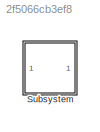
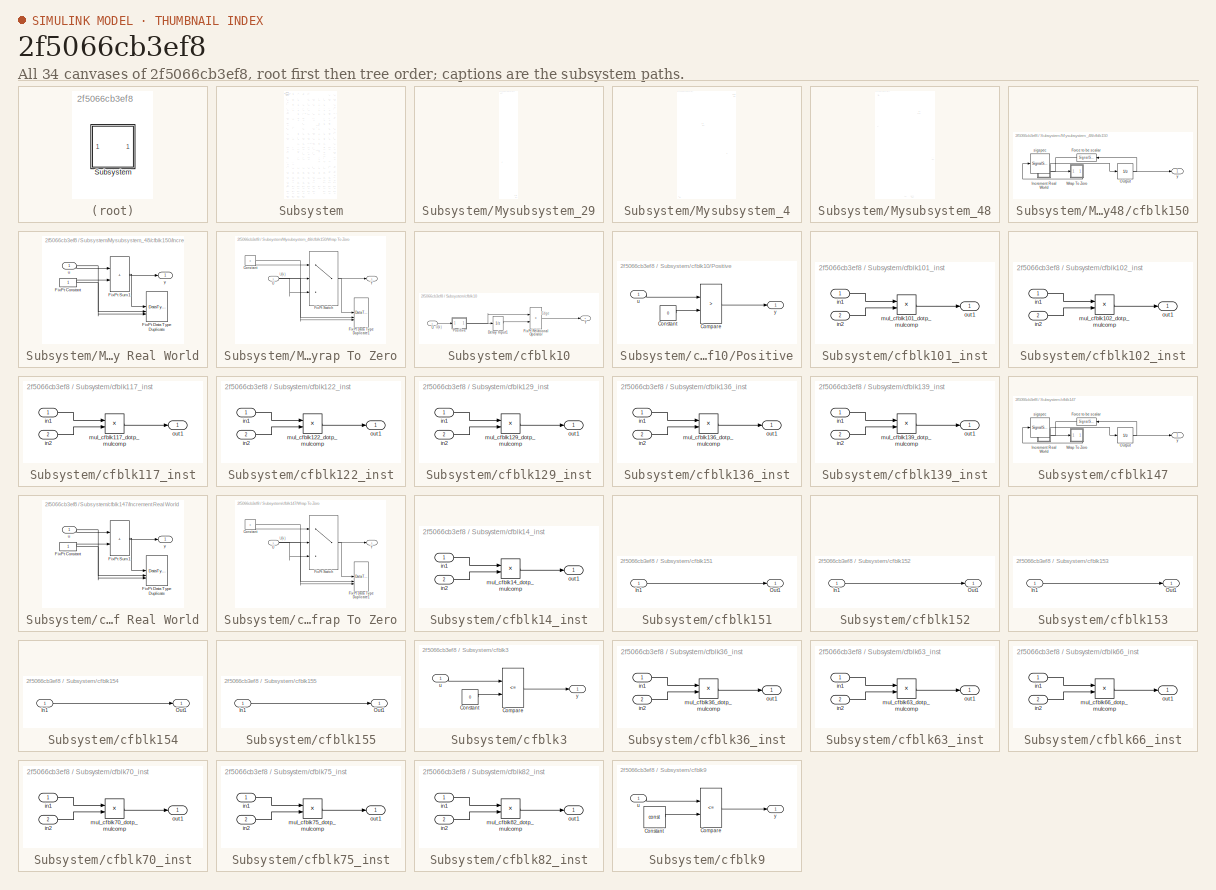
[diagram: thumbnail index - all 34 canvases of the model, root first then tree order]
MODEL slx_2f5066cb3ef8
KIND model
CONFIG AbsTol = auto
CONFIG EnableMultiTasking = off
CONFIG FixedStep = auto
CONFIG MaxStep = auto
CONFIG MinStep = auto
CONFIG RelTol = 1e-3
CONFIG SampleTimeConstraint = Unconstrained
CONFIG SolverName = VariableStepAuto
CONFIG StartTime = 0.0
CONFIG StopTime = 10.0
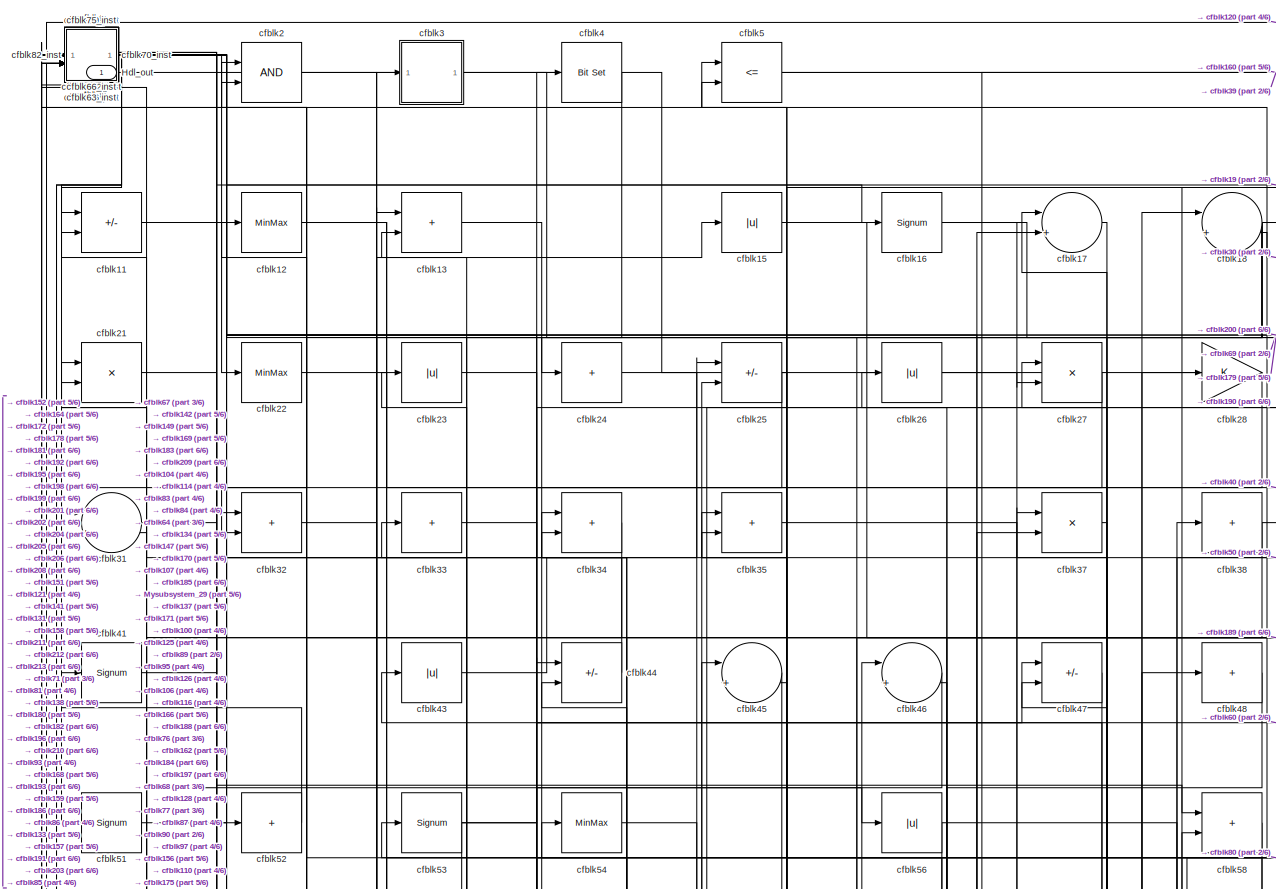
[diagram: Subsystem - part 1/6, full width, top band]
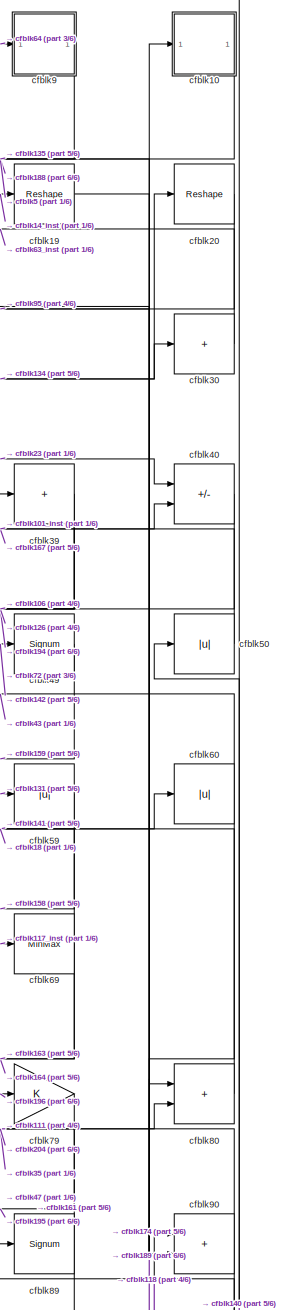
[diagram: Subsystem - part 2/6, top right region]
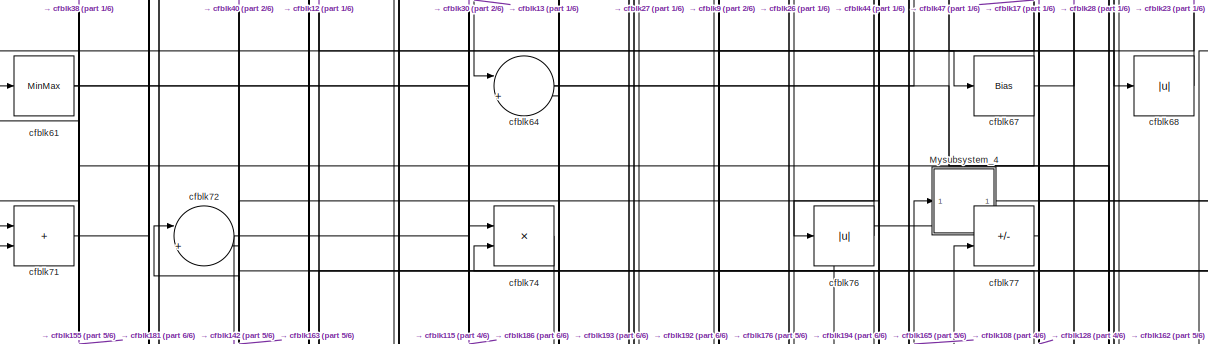
[diagram: Subsystem - part 3/6, full width, top band]
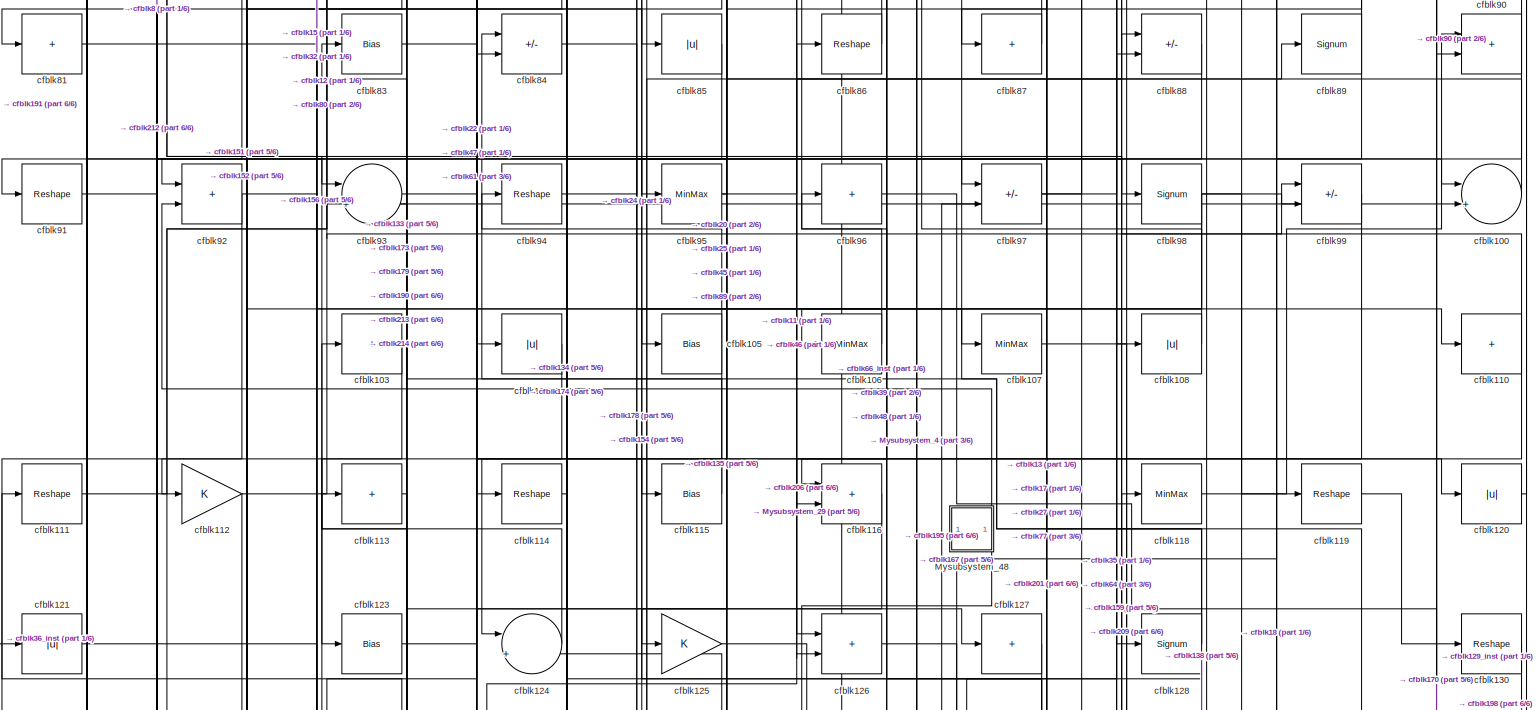
[diagram: Subsystem - part 4/6, full width, middle band]
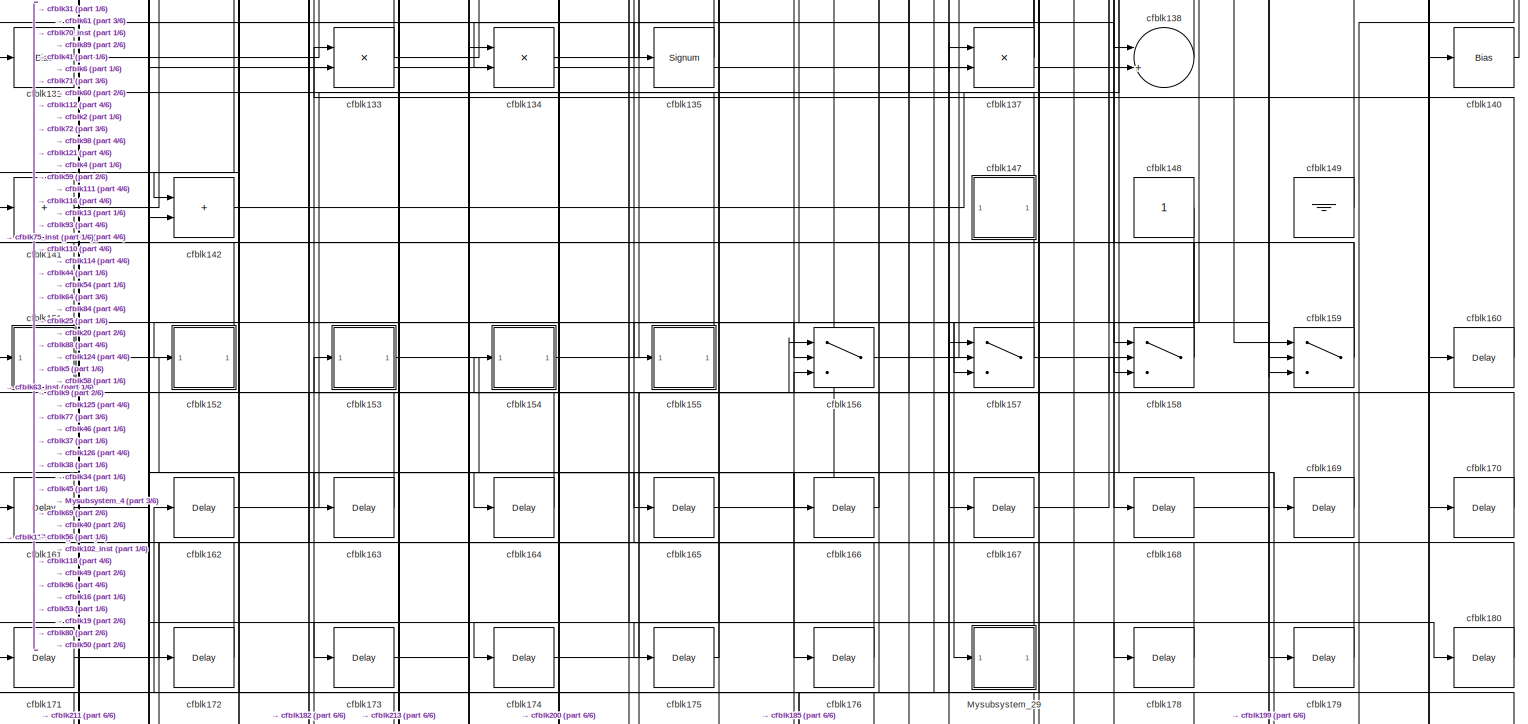
[diagram: Subsystem - part 5/6, full width, bottom band]
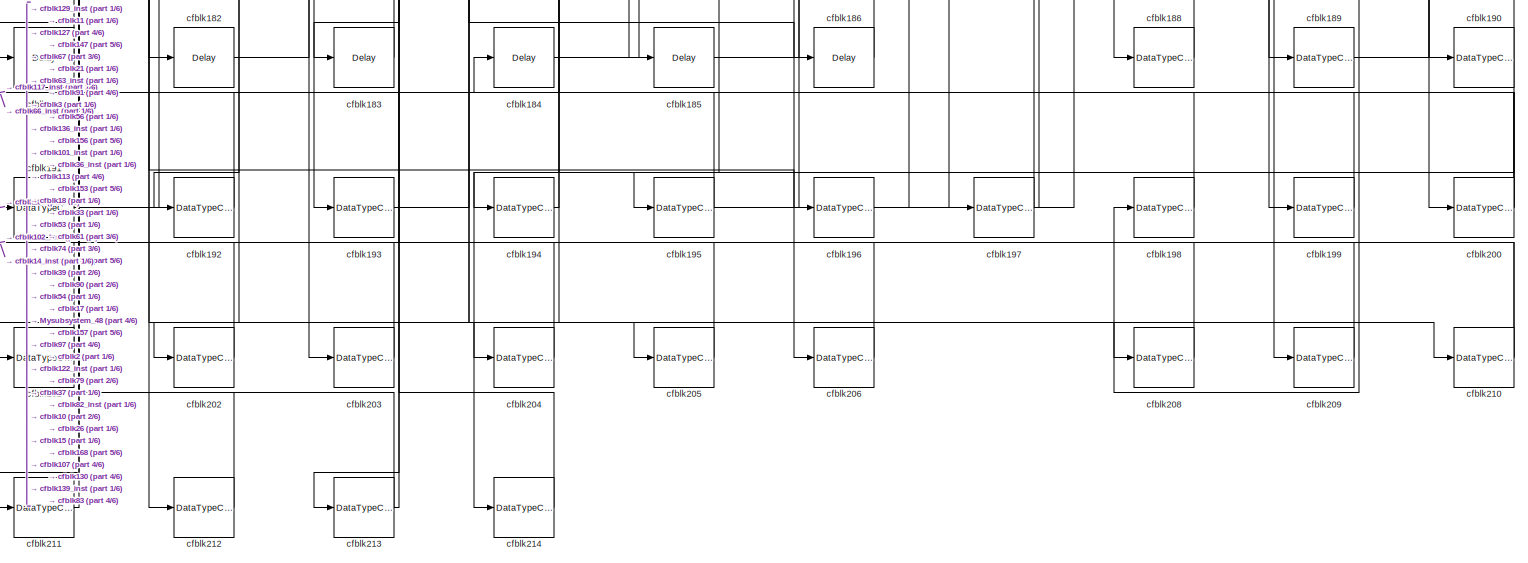
[diagram: Subsystem - part 6/6, full width, bottom band]
BLOCK [SubSystem] Subsystem
BLOCK [Outport] Subsystem/Hdl_out
  OutDataTypeStr = uint8
  SampleTime = 1
BLOCK [SubSystem] Subsystem/Mysubsystem_29
BLOCK [Inport] Subsystem/Mysubsystem_29/In1
  OutDataTypeStr = uint8
  PortDimensions = 1
  SampleTime = 1
BLOCK [Outport] Subsystem/Mysubsystem_29/Out1
  SampleTime = 1
BLOCK [Delay] Subsystem/Mysubsystem_29/cfblk177
  InputPortMap = u0
  SampleTime = 1
BLOCK [SubSystem] Subsystem/Mysubsystem_4
BLOCK [Inport] Subsystem/Mysubsystem_4/In2
  OutDataTypeStr = uint8
  PortDimensions = 1
  SampleTime = 1
BLOCK [Outport] Subsystem/Mysubsystem_4/Out1
  SampleTime = 1
BLOCK [Signum] Subsystem/Mysubsystem_4/cfblk29
BLOCK [Abs] Subsystem/Mysubsystem_4/cfblk65
  SaturateOnIntegerOverflow = off
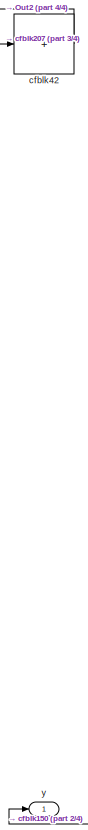
[diagram: Subsystem/Mysubsystem_48 - part 1/4, top left region]
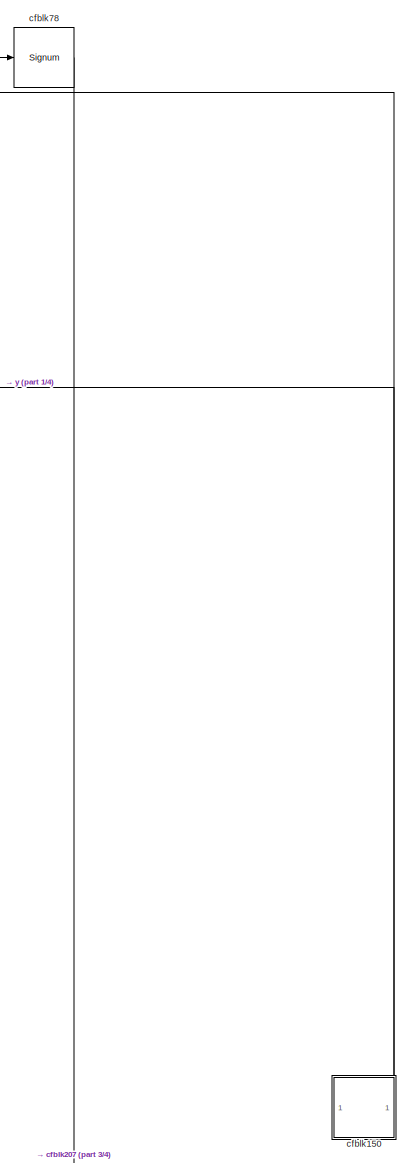
[diagram: Subsystem/Mysubsystem_48 - part 2/4, middle right region]
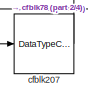
[diagram: Subsystem/Mysubsystem_48 - part 3/4, bottom center region]
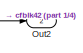
[diagram: Subsystem/Mysubsystem_48 - part 4/4, bottom center region]
BLOCK [SubSystem] Subsystem/Mysubsystem_48
BLOCK [Outport] Subsystem/Mysubsystem_48/Out2
  Port = 2
  SampleTime = 1
BLOCK [SubSystem] Subsystem/Mysubsystem_48/cfblk150
BLOCK [SignalSpecification] Subsystem/Mysubsystem_48/cfblk150/Force to be scalar
  Dimensions = 1
  DisableCoverage = on
BLOCK [SubSystem] Subsystem/Mysubsystem_48/cfblk150/Increment Real World
BLOCK [Constant] Subsystem/Mysubsystem_48/cfblk150/Increment Real World/FixPt Constant
  DisableCoverage = on
  OutDataTypeStr = Inherit: Inherit via back propagation
  SampleTime = -1
BLOCK [DataTypeDuplicate] Subsystem/Mysubsystem_48/cfblk150/Increment Real World/FixPt Data Type Duplicate
  DisableCoverage = on
  NumInputPorts = 3
BLOCK [Sum] Subsystem/Mysubsystem_48/cfblk150/Increment Real World/FixPt Sum1
  IconShape = rectangular
  InputSameDT = on
  LockScale = on
  OutDataTypeStr = Inherit: Inherit via back propagation
BLOCK [Inport] Subsystem/Mysubsystem_48/cfblk150/Increment Real World/u
  OutDataTypeStr = uint16
  SampleTime = 1
BLOCK [Outport] Subsystem/Mysubsystem_48/cfblk150/Increment Real World/y
  SampleTime = 1
BLOCK [UnitDelay] Subsystem/Mysubsystem_48/cfblk150/Output
  HasFrameUpgradeWarning = on
  InitialCondition = 0.0
  SampleTime = tsamp
BLOCK [SubSystem] Subsystem/Mysubsystem_48/cfblk150/Wrap To Zero
BLOCK [Constant] Subsystem/Mysubsystem_48/cfblk150/Wrap To Zero/Constant
  DisableCoverage = on
  OutDataTypeStr = Inherit: Inherit via back propagation
  SampleTime = -1
  Value = 0
BLOCK [DataTypeDuplicate] Subsystem/Mysubsystem_48/cfblk150/Wrap To Zero/FixPt Data Type Duplicate1
  DisableCoverage = on
  NumInputPorts = 3
BLOCK [Switch] Subsystem/Mysubsystem_48/cfblk150/Wrap To Zero/FixPt Switch
  Criteria = u2 > Threshold
  InputSameDT = off
  OutDataTypeStr = Inherit: Inherit via back propagation
  SaturateOnIntegerOverflow = off
  Threshold = Threshold
  ZeroCross = off
BLOCK [Inport] Subsystem/Mysubsystem_48/cfblk150/Wrap To Zero/U
  OutDataTypeStr = uint16
  SampleTime = 1
BLOCK [Outport] Subsystem/Mysubsystem_48/cfblk150/Wrap To Zero/Y
  SampleTime = 1
BLOCK [SignalSpecification] Subsystem/Mysubsystem_48/cfblk150/sigspec
  Dimensions = 1
  OutDataTypeStr = uint16
BLOCK [Outport] Subsystem/Mysubsystem_48/cfblk150/y
  SampleTime = 1
BLOCK [DataTypeConversion] Subsystem/Mysubsystem_48/cfblk207
  OutDataTypeStr = uint8
  RndMeth = Floor
  SaturateOnIntegerOverflow = off
BLOCK [Sum] Subsystem/Mysubsystem_48/cfblk42
  IconShape = rectangular
  Inputs = +
BLOCK [Signum] Subsystem/Mysubsystem_48/cfblk78
BLOCK [Outport] Subsystem/Mysubsystem_48/y
  SampleTime = 1
BLOCK [Constant] Subsystem/cfblk1
  OutDataTypeStr = uint8
  SampleTime = 1
  Value = 0
BLOCK [SubSystem] Subsystem/cfblk10
BLOCK [UnitDelay] Subsystem/cfblk10/Delay Input1
  Description = Store in Global RAM
  DisableCoverage = on
  HasFrameUpgradeWarning = on
  InitialCondition = vinit
  SampleTime = -1
BLOCK [RelationalOperator] Subsystem/cfblk10/FixPt Relational Operator
  InputSameDT = off
  Operator = >
  OutDataTypeStr = fixdt(0, 8)
  ZeroCross = off
BLOCK [SubSystem] Subsystem/cfblk10/Positive
BLOCK [RelationalOperator] Subsystem/cfblk10/Positive/Compare
  Operator = >
  OutDataTypeStr = boolean
  ZeroCross = off
BLOCK [Constant] Subsystem/cfblk10/Positive/Constant
  DisableCoverage = on
  OutDataTypeStr = Inherit: Inherit via back propagation
  PreserveConstantTs = on
  SampleTime = -1
  Value = 0
BLOCK [Inport] Subsystem/cfblk10/Positive/u
  OutDataTypeStr = uint8
  SampleTime = 1
BLOCK [Outport] Subsystem/cfblk10/Positive/y
  SampleTime = 1
BLOCK [Inport] Subsystem/cfblk10/U
  OutDataTypeStr = uint8
  SampleTime = 1
BLOCK [Outport] Subsystem/cfblk10/Y
  SampleTime = 1
BLOCK [Sum] Subsystem/cfblk100
  Inputs = |++
  OutDataTypeStr = uint8
BLOCK [SubSystem] Subsystem/cfblk101_inst
BLOCK [Inport] Subsystem/cfblk101_inst/in1
  OutDataTypeStr = uint8
  SampleTime = 1
BLOCK [Inport] Subsystem/cfblk101_inst/in2
  OutDataTypeStr = uint8
  Port = 2
  SampleTime = 1
BLOCK [Product] Subsystem/cfblk101_inst/mul_cfblk101_dotp_mulcomp
  Inputs = **
  OutDataTypeStr = uint8
  SampleTime = 1
BLOCK [Outport] Subsystem/cfblk101_inst/out1
  OutDataTypeStr = uint8
  SampleTime = 1
BLOCK [SubSystem] Subsystem/cfblk102_inst
BLOCK [Inport] Subsystem/cfblk102_inst/in1
  OutDataTypeStr = uint8
  SampleTime = 1
BLOCK [Inport] Subsystem/cfblk102_inst/in2
  OutDataTypeStr = uint8
  Port = 2
  SampleTime = 1
BLOCK [Product] Subsystem/cfblk102_inst/mul_cfblk102_dotp_mulcomp
  Inputs = **
  OutDataTypeStr = uint8
  SampleTime = 1
BLOCK [Outport] Subsystem/cfblk102_inst/out1
  OutDataTypeStr = uint8
  SampleTime = 1
BLOCK [Sum] Subsystem/cfblk103
  IconShape = rectangular
  Inputs = +
  OutDataTypeStr = uint8
BLOCK [Abs] Subsystem/cfblk104
  OutDataTypeStr = uint8
  SaturateOnIntegerOverflow = off
BLOCK [Bias] Subsystem/cfblk105
  Bias = 0.0
  SaturateOnIntegerOverflow = off
BLOCK [MinMax] Subsystem/cfblk106
  OutDataTypeStr = uint8
BLOCK [MinMax] Subsystem/cfblk107
  OutDataTypeStr = uint8
BLOCK [Abs] Subsystem/cfblk108
  OutDataTypeStr = uint8
  SaturateOnIntegerOverflow = off
BLOCK [Sum] Subsystem/cfblk11
  IconShape = rectangular
  Inputs = +-
  OutDataTypeStr = uint8
BLOCK [Sum] Subsystem/cfblk110
  IconShape = rectangular
  Inputs = +
  OutDataTypeStr = uint8
BLOCK [Reshape] Subsystem/cfblk111
BLOCK [Gain] Subsystem/cfblk112
  OutDataTypeStr = uint8
BLOCK [Sum] Subsystem/cfblk113
  IconShape = rectangular
  Inputs = +
  OutDataTypeStr = uint8
BLOCK [Reshape] Subsystem/cfblk114
BLOCK [Bias] Subsystem/cfblk115
  Bias = 0.0
  SaturateOnIntegerOverflow = off
BLOCK [Sum] Subsystem/cfblk116
  IconShape = rectangular
  OutDataTypeStr = uint8
BLOCK [SubSystem] Subsystem/cfblk117_inst
BLOCK [Inport] Subsystem/cfblk117_inst/in1
  OutDataTypeStr = uint8
  SampleTime = 1
BLOCK [Inport] Subsystem/cfblk117_inst/in2
  OutDataTypeStr = uint8
  Port = 2
  SampleTime = 1
BLOCK [Product] Subsystem/cfblk117_inst/mul_cfblk117_dotp_mulcomp
  Inputs = **
  OutDataTypeStr = uint8
  SampleTime = 1
BLOCK [Outport] Subsystem/cfblk117_inst/out1
  OutDataTypeStr = uint8
  SampleTime = 1
BLOCK [MinMax] Subsystem/cfblk118
  OutDataTypeStr = uint8
BLOCK [Reshape] Subsystem/cfblk119
BLOCK [MinMax] Subsystem/cfblk12
  OutDataTypeStr = uint8
BLOCK [Abs] Subsystem/cfblk120
  OutDataTypeStr = uint8
  SaturateOnIntegerOverflow = off
BLOCK [Abs] Subsystem/cfblk121
  OutDataTypeStr = uint8
  SaturateOnIntegerOverflow = off
BLOCK [SubSystem] Subsystem/cfblk122_inst
BLOCK [Inport] Subsystem/cfblk122_inst/in1
  OutDataTypeStr = uint8
  SampleTime = 1
BLOCK [Inport] Subsystem/cfblk122_inst/in2
  OutDataTypeStr = uint8
  Port = 2
  SampleTime = 1
BLOCK [Product] Subsystem/cfblk122_inst/mul_cfblk122_dotp_mulcomp
  Inputs = **
  OutDataTypeStr = uint8
  SampleTime = 1
BLOCK [Outport] Subsystem/cfblk122_inst/out1
  OutDataTypeStr = uint8
  SampleTime = 1
BLOCK [Bias] Subsystem/cfblk123
  Bias = 0.0
  SaturateOnIntegerOverflow = off
BLOCK [Sum] Subsystem/cfblk124
  Inputs = |++
  OutDataTypeStr = uint8
BLOCK [Gain] Subsystem/cfblk125
  OutDataTypeStr = uint8
BLOCK [Sum] Subsystem/cfblk126
  IconShape = rectangular
  OutDataTypeStr = uint8
BLOCK [Sum] Subsystem/cfblk127
  IconShape = rectangular
  Inputs = +
  OutDataTypeStr = uint8
BLOCK [Signum] Subsystem/cfblk128
BLOCK [SubSystem] Subsystem/cfblk129_inst
BLOCK [Inport] Subsystem/cfblk129_inst/in1
  OutDataTypeStr = uint8
  SampleTime = 1
BLOCK [Inport] Subsystem/cfblk129_inst/in2
  OutDataTypeStr = uint8
  Port = 2
  SampleTime = 1
BLOCK [Product] Subsystem/cfblk129_inst/mul_cfblk129_dotp_mulcomp
  Inputs = **
  OutDataTypeStr = uint8
  SampleTime = 1
BLOCK [Outport] Subsystem/cfblk129_inst/out1
  OutDataTypeStr = uint8
  SampleTime = 1
BLOCK [Sum] Subsystem/cfblk13
  IconShape = rectangular
  OutDataTypeStr = uint8
BLOCK [Reshape] Subsystem/cfblk130
BLOCK [Bias] Subsystem/cfblk131
  Bias = 0.0
  SaturateOnIntegerOverflow = off
BLOCK [Product] Subsystem/cfblk133
  Inputs = */
  OutDataTypeStr = uint8
  RndMeth = Zero
  SaturateOnIntegerOverflow = on
BLOCK [Product] Subsystem/cfblk134
  Inputs = */
  OutDataTypeStr = uint8
  RndMeth = Zero
  SaturateOnIntegerOverflow = on
BLOCK [Signum] Subsystem/cfblk135
BLOCK [SubSystem] Subsystem/cfblk136_inst
BLOCK [Inport] Subsystem/cfblk136_inst/in1
  OutDataTypeStr = uint8
  SampleTime = 1
BLOCK [Inport] Subsystem/cfblk136_inst/in2
  OutDataTypeStr = uint8
  Port = 2
  SampleTime = 1
BLOCK [Product] Subsystem/cfblk136_inst/mul_cfblk136_dotp_mulcomp
  Inputs = **
  OutDataTypeStr = uint8
  SampleTime = 1
BLOCK [Outport] Subsystem/cfblk136_inst/out1
  OutDataTypeStr = uint8
  SampleTime = 1
BLOCK [Product] Subsystem/cfblk137
  Inputs = */
  OutDataTypeStr = uint8
  RndMeth = Zero
  SaturateOnIntegerOverflow = on
BLOCK [Sum] Subsystem/cfblk138
  Inputs = |++
  OutDataTypeStr = uint8
BLOCK [SubSystem] Subsystem/cfblk139_inst
BLOCK [Inport] Subsystem/cfblk139_inst/in1
  OutDataTypeStr = uint8
  SampleTime = 1
BLOCK [Inport] Subsystem/cfblk139_inst/in2
  OutDataTypeStr = uint8
  Port = 2
  SampleTime = 1
BLOCK [Product] Subsystem/cfblk139_inst/mul_cfblk139_dotp_mulcomp
  Inputs = **
  OutDataTypeStr = uint8
  SampleTime = 1
BLOCK [Outport] Subsystem/cfblk139_inst/out1
  OutDataTypeStr = uint8
  SampleTime = 1
BLOCK [Bias] Subsystem/cfblk140
  Bias = 0.0
  SaturateOnIntegerOverflow = off
BLOCK [Sum] Subsystem/cfblk141
  IconShape = rectangular
  Inputs = +
  OutDataTypeStr = uint8
BLOCK [Sum] Subsystem/cfblk142
  IconShape = rectangular
  OutDataTypeStr = uint8
BLOCK [SubSystem] Subsystem/cfblk147
BLOCK [SignalSpecification] Subsystem/cfblk147/Force to be scalar
  Dimensions = 1
  DisableCoverage = on
BLOCK [SubSystem] Subsystem/cfblk147/Increment Real World
BLOCK [Constant] Subsystem/cfblk147/Increment Real World/FixPt Constant
  DisableCoverage = on
  OutDataTypeStr = Inherit: Inherit via back propagation
  SampleTime = -1
BLOCK [DataTypeDuplicate] Subsystem/cfblk147/Increment Real World/FixPt Data Type Duplicate
  DisableCoverage = on
  NumInputPorts = 3
BLOCK [Sum] Subsystem/cfblk147/Increment Real World/FixPt Sum1
  IconShape = rectangular
  InputSameDT = on
  LockScale = on
  OutDataTypeStr = Inherit: Inherit via back propagation
BLOCK [Inport] Subsystem/cfblk147/Increment Real World/u
  OutDataTypeStr = uint16
  SampleTime = 1
BLOCK [Outport] Subsystem/cfblk147/Increment Real World/y
  SampleTime = 1
BLOCK [UnitDelay] Subsystem/cfblk147/Output
  HasFrameUpgradeWarning = on
  InitialCondition = 0.0
  SampleTime = tsamp
BLOCK [SubSystem] Subsystem/cfblk147/Wrap To Zero
BLOCK [Constant] Subsystem/cfblk147/Wrap To Zero/Constant
  DisableCoverage = on
  OutDataTypeStr = Inherit: Inherit via back propagation
  SampleTime = -1
  Value = 0
BLOCK [DataTypeDuplicate] Subsystem/cfblk147/Wrap To Zero/FixPt Data Type Duplicate1
  DisableCoverage = on
  NumInputPorts = 3
BLOCK [Switch] Subsystem/cfblk147/Wrap To Zero/FixPt Switch
  Criteria = u2 > Threshold
  InputSameDT = off
  OutDataTypeStr = Inherit: Inherit via back propagation
  SaturateOnIntegerOverflow = off
  Threshold = Threshold
  ZeroCross = off
BLOCK [Inport] Subsystem/cfblk147/Wrap To Zero/U
  OutDataTypeStr = uint16
  SampleTime = 1
BLOCK [Outport] Subsystem/cfblk147/Wrap To Zero/Y
  SampleTime = 1
BLOCK [SignalSpecification] Subsystem/cfblk147/sigspec
  Dimensions = 1
  OutDataTypeStr = uint16
BLOCK [Outport] Subsystem/cfblk147/y
  SampleTime = 1
BLOCK [Constant] Subsystem/cfblk148
  OutDataTypeStr = uint8
  SampleTime = -1
BLOCK [Ground] Subsystem/cfblk149
BLOCK [SubSystem] Subsystem/cfblk14_inst
BLOCK [Inport] Subsystem/cfblk14_inst/in1
  OutDataTypeStr = uint8
  SampleTime = 1
BLOCK [Inport] Subsystem/cfblk14_inst/in2
  OutDataTypeStr = uint8
  Port = 2
  SampleTime = 1
BLOCK [Product] Subsystem/cfblk14_inst/mul_cfblk14_dotp_mulcomp
  Inputs = **
  OutDataTypeStr = uint8
  SampleTime = 1
BLOCK [Outport] Subsystem/cfblk14_inst/out1
  OutDataTypeStr = uint8
  SampleTime = 1
BLOCK [Abs] Subsystem/cfblk15
  OutDataTypeStr = uint8
  SaturateOnIntegerOverflow = off
BLOCK [SubSystem] Subsystem/cfblk151
BLOCK [Inport] Subsystem/cfblk151/In1
  OutDataTypeStr = uint8
  PortDimensions = 1
  SampleTime = 1
BLOCK [Outport] Subsystem/cfblk151/Out1
  SampleTime = 1
BLOCK [SubSystem] Subsystem/cfblk152
BLOCK [Inport] Subsystem/cfblk152/In1
  OutDataTypeStr = uint8
  PortDimensions = 1
  SampleTime = 1
BLOCK [Outport] Subsystem/cfblk152/Out1
  SampleTime = 1
BLOCK [SubSystem] Subsystem/cfblk153
BLOCK [Inport] Subsystem/cfblk153/In1
  OutDataTypeStr = uint8
  PortDimensions = 1
  SampleTime = 1
BLOCK [Outport] Subsystem/cfblk153/Out1
  SampleTime = 1
BLOCK [SubSystem] Subsystem/cfblk154
BLOCK [Inport] Subsystem/cfblk154/In1
  OutDataTypeStr = uint8
  PortDimensions = 1
  SampleTime = 1
BLOCK [Outport] Subsystem/cfblk154/Out1
  SampleTime = 1
BLOCK [SubSystem] Subsystem/cfblk155
BLOCK [Inport] Subsystem/cfblk155/In1
  OutDataTypeStr = uint8
  PortDimensions = 1
  SampleTime = 1
BLOCK [Outport] Subsystem/cfblk155/Out1
  SampleTime = 1
BLOCK [Switch] Subsystem/cfblk156
  InputSameDT = off
  OutDataTypeStr = uint8
  SaturateOnIntegerOverflow = off
BLOCK [Switch] Subsystem/cfblk157
  InputSameDT = off
  OutDataTypeStr = uint8
  SaturateOnIntegerOverflow = off
BLOCK [Switch] Subsystem/cfblk158
  InputSameDT = off
  OutDataTypeStr = uint8
  SaturateOnIntegerOverflow = off
BLOCK [Switch] Subsystem/cfblk159
  InputSameDT = off
  OutDataTypeStr = uint8
  SaturateOnIntegerOverflow = off
BLOCK [Signum] Subsystem/cfblk16
BLOCK [Delay] Subsystem/cfblk160
  InputPortMap = u0
  SampleTime = 1
BLOCK [Delay] Subsystem/cfblk161
  InputPortMap = u0
  SampleTime = 1
BLOCK [Delay] Subsystem/cfblk162
  InputPortMap = u0
  SampleTime = 1
BLOCK [Delay] Subsystem/cfblk163
  InputPortMap = u0
  SampleTime = 1
BLOCK [Delay] Subsystem/cfblk164
  InputPortMap = u0
  SampleTime = 1
BLOCK [Delay] Subsystem/cfblk165
  InputPortMap = u0
  SampleTime = 1
BLOCK [Delay] Subsystem/cfblk166
  InputPortMap = u0
  SampleTime = 1
BLOCK [Delay] Subsystem/cfblk167
  InputPortMap = u0
  SampleTime = 1
BLOCK [Delay] Subsystem/cfblk168
  InputPortMap = u0
  SampleTime = 1
BLOCK [Delay] Subsystem/cfblk169
  InputPortMap = u0
  SampleTime = 1
BLOCK [Sum] Subsystem/cfblk17
  Inputs = |++
  OutDataTypeStr = uint8
BLOCK [Delay] Subsystem/cfblk170
  InputPortMap = u0
  SampleTime = 1
BLOCK [Delay] Subsystem/cfblk171
  InputPortMap = u0
  SampleTime = 1
BLOCK [Delay] Subsystem/cfblk172
  InputPortMap = u0
  SampleTime = 1
BLOCK [Delay] Subsystem/cfblk173
  InputPortMap = u0
  SampleTime = 1
BLOCK [Delay] Subsystem/cfblk174
  InputPortMap = u0
  SampleTime = 1
BLOCK [Delay] Subsystem/cfblk175
  InputPortMap = u0
  SampleTime = 1
BLOCK [Delay] Subsystem/cfblk176
  InputPortMap = u0
  SampleTime = 1
BLOCK [Delay] Subsystem/cfblk178
  InputPortMap = u0
  SampleTime = 1
BLOCK [Delay] Subsystem/cfblk179
  InputPortMap = u0
  SampleTime = 1
BLOCK [Sum] Subsystem/cfblk18
  Inputs = |++
  OutDataTypeStr = uint8
BLOCK [Delay] Subsystem/cfblk180
  InputPortMap = u0
  SampleTime = 1
BLOCK [Delay] Subsystem/cfblk181
  InputPortMap = u0
  SampleTime = 1
BLOCK [Delay] Subsystem/cfblk182
  InputPortMap = u0
  SampleTime = 1
BLOCK [Delay] Subsystem/cfblk183
  InputPortMap = u0
  SampleTime = 1
BLOCK [Delay] Subsystem/cfblk184
  InputPortMap = u0
  SampleTime = 1
BLOCK [Delay] Subsystem/cfblk185
  InputPortMap = u0
  SampleTime = 1
BLOCK [Delay] Subsystem/cfblk186
  InputPortMap = u0
  SampleTime = 1
BLOCK [DataTypeConversion] Subsystem/cfblk188
  OutDataTypeStr = uint8
  RndMeth = Floor
  SaturateOnIntegerOverflow = off
BLOCK [DataTypeConversion] Subsystem/cfblk189
  OutDataTypeStr = uint8
  RndMeth = Floor
  SaturateOnIntegerOverflow = off
BLOCK [Reshape] Subsystem/cfblk19
BLOCK [DataTypeConversion] Subsystem/cfblk190
  OutDataTypeStr = uint8
  RndMeth = Floor
  SaturateOnIntegerOverflow = off
BLOCK [DataTypeConversion] Subsystem/cfblk191
  OutDataTypeStr = uint8
  RndMeth = Floor
  SaturateOnIntegerOverflow = off
BLOCK [DataTypeConversion] Subsystem/cfblk192
  OutDataTypeStr = uint8
  RndMeth = Floor
  SaturateOnIntegerOverflow = off
BLOCK [DataTypeConversion] Subsystem/cfblk193
  OutDataTypeStr = uint8
  RndMeth = Floor
  SaturateOnIntegerOverflow = off
BLOCK [DataTypeConversion] Subsystem/cfblk194
  OutDataTypeStr = uint8
  RndMeth = Floor
  SaturateOnIntegerOverflow = off
BLOCK [DataTypeConversion] Subsystem/cfblk195
  OutDataTypeStr = uint8
  RndMeth = Floor
  SaturateOnIntegerOverflow = off
BLOCK [DataTypeConversion] Subsystem/cfblk196
  OutDataTypeStr = uint8
  RndMeth = Floor
  SaturateOnIntegerOverflow = off
BLOCK [DataTypeConversion] Subsystem/cfblk197
  OutDataTypeStr = uint8
  RndMeth = Floor
  SaturateOnIntegerOverflow = off
BLOCK [DataTypeConversion] Subsystem/cfblk198
  OutDataTypeStr = uint8
  RndMeth = Floor
  SaturateOnIntegerOverflow = off
BLOCK [DataTypeConversion] Subsystem/cfblk199
  OutDataTypeStr = uint8
  RndMeth = Floor
  SaturateOnIntegerOverflow = off
BLOCK [Logic] Subsystem/cfblk2
  AllPortsSameDT = off
  OutDataTypeStr = boolean
BLOCK [Reshape] Subsystem/cfblk20
BLOCK [DataTypeConversion] Subsystem/cfblk200
  OutDataTypeStr = uint8
  RndMeth = Floor
  SaturateOnIntegerOverflow = off
BLOCK [DataTypeConversion] Subsystem/cfblk201
  OutDataTypeStr = uint8
  RndMeth = Floor
  SaturateOnIntegerOverflow = off
BLOCK [DataTypeConversion] Subsystem/cfblk202
  OutDataTypeStr = uint8
  RndMeth = Floor
  SaturateOnIntegerOverflow = off
BLOCK [DataTypeConversion] Subsystem/cfblk203
  OutDataTypeStr = uint8
  RndMeth = Floor
  SaturateOnIntegerOverflow = off
BLOCK [DataTypeConversion] Subsystem/cfblk204
  OutDataTypeStr = uint8
  RndMeth = Floor
  SaturateOnIntegerOverflow = off
BLOCK [DataTypeConversion] Subsystem/cfblk205
  OutDataTypeStr = uint8
  RndMeth = Floor
  SaturateOnIntegerOverflow = off
BLOCK [DataTypeConversion] Subsystem/cfblk206
  OutDataTypeStr = uint8
  RndMeth = Floor
  SaturateOnIntegerOverflow = off
BLOCK [DataTypeConversion] Subsystem/cfblk208
  OutDataTypeStr = uint8
  RndMeth = Floor
  SaturateOnIntegerOverflow = off
BLOCK [DataTypeConversion] Subsystem/cfblk209
  OutDataTypeStr = uint8
  RndMeth = Floor
  SaturateOnIntegerOverflow = off
BLOCK [Product] Subsystem/cfblk21
  Inputs = */
  OutDataTypeStr = uint8
  RndMeth = Zero
  SaturateOnIntegerOverflow = on
BLOCK [DataTypeConversion] Subsystem/cfblk210
  OutDataTypeStr = uint8
  RndMeth = Floor
  SaturateOnIntegerOverflow = off
BLOCK [DataTypeConversion] Subsystem/cfblk211
  OutDataTypeStr = uint8
  RndMeth = Floor
  SaturateOnIntegerOverflow = off
BLOCK [DataTypeConversion] Subsystem/cfblk212
  OutDataTypeStr = uint8
  RndMeth = Floor
  SaturateOnIntegerOverflow = off
BLOCK [DataTypeConversion] Subsystem/cfblk213
  OutDataTypeStr = uint8
  RndMeth = Floor
  SaturateOnIntegerOverflow = off
BLOCK [DataTypeConversion] Subsystem/cfblk214
  OutDataTypeStr = uint8
  RndMeth = Floor
  SaturateOnIntegerOverflow = off
BLOCK [MinMax] Subsystem/cfblk22
  OutDataTypeStr = uint8
BLOCK [Abs] Subsystem/cfblk23
  OutDataTypeStr = uint8
  SaturateOnIntegerOverflow = off
BLOCK [Sum] Subsystem/cfblk24
  IconShape = rectangular
  Inputs = +
  OutDataTypeStr = uint8
BLOCK [Sum] Subsystem/cfblk25
  IconShape = rectangular
  Inputs = +-
  OutDataTypeStr = uint8
BLOCK [Abs] Subsystem/cfblk26
  OutDataTypeStr = uint8
  SaturateOnIntegerOverflow = off
BLOCK [Product] Subsystem/cfblk27
  Inputs = */
  OutDataTypeStr = uint8
  RndMeth = Zero
  SaturateOnIntegerOverflow = on
BLOCK [Gain] Subsystem/cfblk28
  OutDataTypeStr = uint8
BLOCK [SubSystem] Subsystem/cfblk3
BLOCK [RelationalOperator] Subsystem/cfblk3/Compare
  Operator = <=
  OutDataTypeStr = fixdt(0, 8)
BLOCK [Constant] Subsystem/cfblk3/Constant
  DisableCoverage = on
  OutDataTypeStr = Inherit: Inherit via back propagation
  PreserveConstantTs = on
  SampleTime = -1
  Value = 0
BLOCK [Inport] Subsystem/cfblk3/u
  OutDataTypeStr = uint8
  SampleTime = 1
BLOCK [Outport] Subsystem/cfblk3/y
  SampleTime = 1
BLOCK [Sum] Subsystem/cfblk30
  IconShape = rectangular
  Inputs = +
  OutDataTypeStr = uint8
BLOCK [Sum] Subsystem/cfblk31
  Inputs = |++
  OutDataTypeStr = uint8
BLOCK [Sum] Subsystem/cfblk32
  IconShape = rectangular
  OutDataTypeStr = uint8
BLOCK [Sum] Subsystem/cfblk33
  IconShape = rectangular
  Inputs = +
  OutDataTypeStr = uint8
BLOCK [Sum] Subsystem/cfblk34
  IconShape = rectangular
  OutDataTypeStr = uint8
BLOCK [Sum] Subsystem/cfblk35
  IconShape = rectangular
  OutDataTypeStr = uint8
BLOCK [SubSystem] Subsystem/cfblk36_inst
BLOCK [Inport] Subsystem/cfblk36_inst/in1
  OutDataTypeStr = uint8
  SampleTime = 1
BLOCK [Inport] Subsystem/cfblk36_inst/in2
  OutDataTypeStr = uint8
  Port = 2
  SampleTime = 1
BLOCK [Product] Subsystem/cfblk36_inst/mul_cfblk36_dotp_mulcomp
  Inputs = **
  OutDataTypeStr = uint8
  SampleTime = 1
BLOCK [Outport] Subsystem/cfblk36_inst/out1
  OutDataTypeStr = uint8
  SampleTime = 1
BLOCK [Product] Subsystem/cfblk37
  Inputs = */
  OutDataTypeStr = uint8
  RndMeth = Zero
  SaturateOnIntegerOverflow = on
BLOCK [Sum] Subsystem/cfblk38
  IconShape = rectangular
  Inputs = +
  OutDataTypeStr = uint8
BLOCK [Sum] Subsystem/cfblk39
  IconShape = rectangular
  Inputs = +
  OutDataTypeStr = uint8
BLOCK [Reference] Subsystem/cfblk4  REF=simulink/Logic and Bit
Operations/Bit Set
  LibrarySourceBlock = hdlsllib/Logic and Bit\nOperations/Bit Set
  SourceBlock = simulink/Logic and Bit\nOperations/Bit Set
  SourceType = Bit Set
BLOCK [Sum] Subsystem/cfblk40
  IconShape = rectangular
  Inputs = +-
  OutDataTypeStr = uint8
BLOCK [Signum] Subsystem/cfblk41
BLOCK [Abs] Subsystem/cfblk43
  OutDataTypeStr = uint8
  SaturateOnIntegerOverflow = off
BLOCK [Sum] Subsystem/cfblk44
  IconShape = rectangular
  Inputs = +-
  OutDataTypeStr = uint8
BLOCK [Sum] Subsystem/cfblk45
  Inputs = |++
  OutDataTypeStr = uint8
BLOCK [Sum] Subsystem/cfblk46
  Inputs = |++
  OutDataTypeStr = uint8
BLOCK [Sum] Subsystem/cfblk47
  IconShape = rectangular
  Inputs = +-
  OutDataTypeStr = uint8
BLOCK [Sum] Subsystem/cfblk48
  IconShape = rectangular
  Inputs = +
  OutDataTypeStr = uint8
BLOCK [Signum] Subsystem/cfblk49
BLOCK [RelationalOperator] Subsystem/cfblk5
  InputSameDT = off
  Operator = <=
  OutDataTypeStr = boolean
BLOCK [Abs] Subsystem/cfblk50
  OutDataTypeStr = uint8
  SaturateOnIntegerOverflow = off
BLOCK [Signum] Subsystem/cfblk51
BLOCK [Sum] Subsystem/cfblk52
  IconShape = rectangular
  Inputs = +
  OutDataTypeStr = uint8
BLOCK [Signum] Subsystem/cfblk53
BLOCK [MinMax] Subsystem/cfblk54
  OutDataTypeStr = uint8
BLOCK [Abs] Subsystem/cfblk56
  OutDataTypeStr = uint8
  SaturateOnIntegerOverflow = off
BLOCK [Sum] Subsystem/cfblk58
  IconShape = rectangular
  OutDataTypeStr = uint8
BLOCK [Abs] Subsystem/cfblk59
  OutDataTypeStr = uint8
  SaturateOnIntegerOverflow = off
BLOCK [Constant] Subsystem/cfblk6
  OutDataTypeStr = uint8
  SampleTime = 1
  Value = 0
BLOCK [Abs] Subsystem/cfblk60
  OutDataTypeStr = uint8
  SaturateOnIntegerOverflow = off
BLOCK [MinMax] Subsystem/cfblk61
  OutDataTypeStr = uint8
BLOCK [SubSystem] Subsystem/cfblk63_inst
BLOCK [Inport] Subsystem/cfblk63_inst/in1
  OutDataTypeStr = uint8
  SampleTime = 1
BLOCK [Inport] Subsystem/cfblk63_inst/in2
  OutDataTypeStr = uint8
  Port = 2
  SampleTime = 1
BLOCK [Product] Subsystem/cfblk63_inst/mul_cfblk63_dotp_mulcomp
  Inputs = **
  OutDataTypeStr = uint8
  SampleTime = 1
BLOCK [Outport] Subsystem/cfblk63_inst/out1
  OutDataTypeStr = uint8
  SampleTime = 1
BLOCK [Sum] Subsystem/cfblk64
  Inputs = |++
  OutDataTypeStr = uint8
BLOCK [SubSystem] Subsystem/cfblk66_inst
BLOCK [Inport] Subsystem/cfblk66_inst/in1
  OutDataTypeStr = uint8
  SampleTime = 1
BLOCK [Inport] Subsystem/cfblk66_inst/in2
  OutDataTypeStr = uint8
  Port = 2
  SampleTime = 1
BLOCK [Product] Subsystem/cfblk66_inst/mul_cfblk66_dotp_mulcomp
  Inputs = **
  OutDataTypeStr = uint8
  SampleTime = 1
BLOCK [Outport] Subsystem/cfblk66_inst/out1
  OutDataTypeStr = uint8
  SampleTime = 1
BLOCK [Bias] Subsystem/cfblk67
  Bias = 0.0
  SaturateOnIntegerOverflow = off
BLOCK [Abs] Subsystem/cfblk68
  OutDataTypeStr = uint8
  SaturateOnIntegerOverflow = off
BLOCK [MinMax] Subsystem/cfblk69
  OutDataTypeStr = uint8
BLOCK [SubSystem] Subsystem/cfblk70_inst
BLOCK [Inport] Subsystem/cfblk70_inst/in1
  OutDataTypeStr = uint8
  SampleTime = 1
BLOCK [Inport] Subsystem/cfblk70_inst/in2
  OutDataTypeStr = uint8
  Port = 2
  SampleTime = 1
BLOCK [Product] Subsystem/cfblk70_inst/mul_cfblk70_dotp_mulcomp
  Inputs = **
  OutDataTypeStr = uint8
  SampleTime = 1
BLOCK [Outport] Subsystem/cfblk70_inst/out1
  OutDataTypeStr = uint8
  SampleTime = 1
BLOCK [Sum] Subsystem/cfblk71
  IconShape = rectangular
  OutDataTypeStr = uint8
BLOCK [Sum] Subsystem/cfblk72
  Inputs = |++
  OutDataTypeStr = uint8
BLOCK [Product] Subsystem/cfblk74
  Inputs = */
  OutDataTypeStr = uint8
  RndMeth = Zero
  SaturateOnIntegerOverflow = on
BLOCK [SubSystem] Subsystem/cfblk75_inst
BLOCK [Inport] Subsystem/cfblk75_inst/in1
  OutDataTypeStr = uint8
  SampleTime = 1
BLOCK [Inport] Subsystem/cfblk75_inst/in2
  OutDataTypeStr = uint8
  Port = 2
  SampleTime = 1
BLOCK [Product] Subsystem/cfblk75_inst/mul_cfblk75_dotp_mulcomp
  Inputs = **
  OutDataTypeStr = uint8
  SampleTime = 1
BLOCK [Outport] Subsystem/cfblk75_inst/out1
  OutDataTypeStr = uint8
  SampleTime = 1
BLOCK [Abs] Subsystem/cfblk76
  OutDataTypeStr = uint8
  SaturateOnIntegerOverflow = off
BLOCK [Sum] Subsystem/cfblk77
  IconShape = rectangular
  Inputs = +-
  OutDataTypeStr = uint8
BLOCK [Gain] Subsystem/cfblk79
  OutDataTypeStr = uint8
BLOCK [Constant] Subsystem/cfblk8
  OutDataTypeStr = uint8
  SampleTime = 1
  Value = 0
BLOCK [Sum] Subsystem/cfblk80
  IconShape = rectangular
  OutDataTypeStr = uint8
BLOCK [Sum] Subsystem/cfblk81
  IconShape = rectangular
  Inputs = +
  OutDataTypeStr = uint8
BLOCK [SubSystem] Subsystem/cfblk82_inst
BLOCK [Inport] Subsystem/cfblk82_inst/in1
  OutDataTypeStr = uint8
  SampleTime = 1
BLOCK [Inport] Subsystem/cfblk82_inst/in2
  OutDataTypeStr = uint8
  Port = 2
  SampleTime = 1
BLOCK [Product] Subsystem/cfblk82_inst/mul_cfblk82_dotp_mulcomp
  Inputs = **
  OutDataTypeStr = uint8
  SampleTime = 1
BLOCK [Outport] Subsystem/cfblk82_inst/out1
  OutDataTypeStr = uint8
  SampleTime = 1
BLOCK [Bias] Subsystem/cfblk83
  Bias = 0.0
  SaturateOnIntegerOverflow = off
BLOCK [Sum] Subsystem/cfblk84
  IconShape = rectangular
  Inputs = +-
  OutDataTypeStr = uint8
BLOCK [Abs] Subsystem/cfblk85
  OutDataTypeStr = uint8
  SaturateOnIntegerOverflow = off
BLOCK [Reshape] Subsystem/cfblk86
BLOCK [Sum] Subsystem/cfblk87
  IconShape = rectangular
  Inputs = +
  OutDataTypeStr = uint8
BLOCK [Sum] Subsystem/cfblk88
  IconShape = rectangular
  Inputs = +-
  OutDataTypeStr = uint8
BLOCK [Signum] Subsystem/cfblk89
BLOCK [SubSystem] Subsystem/cfblk9
BLOCK [RelationalOperator] Subsystem/cfblk9/Compare
  Operator = <=
  OutDataTypeStr = fixdt(0, 8)
BLOCK [Constant] Subsystem/cfblk9/Constant
  DisableCoverage = on
  OutDataTypeStr = Inherit: Inherit via back propagation
  SampleTime = -1
  Value = const
BLOCK [Inport] Subsystem/cfblk9/u
  OutDataTypeStr = uint8
  SampleTime = 1
BLOCK [Outport] Subsystem/cfblk9/y
  SampleTime = 1
BLOCK [Sum] Subsystem/cfblk90
  IconShape = rectangular
  OutDataTypeStr = uint8
BLOCK [Reshape] Subsystem/cfblk91
BLOCK [Sum] Subsystem/cfblk92
  IconShape = rectangular
  OutDataTypeStr = uint8
BLOCK [Sum] Subsystem/cfblk93
  Inputs = |++
  OutDataTypeStr = uint8
BLOCK [Reshape] Subsystem/cfblk94
BLOCK [MinMax] Subsystem/cfblk95
  OutDataTypeStr = uint8
BLOCK [Sum] Subsystem/cfblk96
  IconShape = rectangular
  Inputs = +
  OutDataTypeStr = uint8
BLOCK [Sum] Subsystem/cfblk97
  IconShape = rectangular
  Inputs = +-
  OutDataTypeStr = uint8
BLOCK [Signum] Subsystem/cfblk98
BLOCK [Sum] Subsystem/cfblk99
  IconShape = rectangular
  Inputs = +-
  OutDataTypeStr = uint8
ANNOTATION Subsystem/Mysubsystem_48/cfblk150/Wrap To Zero: U(k)
ANNOTATION Subsystem/cfblk10: Edge
ANNOTATION Subsystem/cfblk10: U(k)
ANNOTATION Subsystem/cfblk147/Wrap To Zero: U(k)
LINE Subsystem/Mysubsystem_29/In1:1 -> Subsystem/Mysubsystem_29/cfblk177:1
LINE Subsystem/Mysubsystem_29/cfblk177:1 -> Subsystem/Mysubsystem_29/Out1:1
LINE Subsystem/Mysubsystem_29:1 -> Subsystem/cfblk25:2
LINE Subsystem/Mysubsystem_4/In2:1 -> Subsystem/Mysubsystem_4/cfblk29:1
LINE Subsystem/Mysubsystem_4/cfblk29:1 -> Subsystem/Mysubsystem_4/cfblk65:1
LINE Subsystem/Mysubsystem_4/cfblk65:1 -> Subsystem/Mysubsystem_4/Out1:1
NET Subsystem/Mysubsystem_48/cfblk150:1 -> Subsystem/Mysubsystem_48/cfblk78:1, Subsystem/Mysubsystem_48/y:1
LINE Subsystem/Mysubsystem_48/cfblk207:1 -> Subsystem/Mysubsystem_48/cfblk42:1
LINE Subsystem/Mysubsystem_48/cfblk42:1 -> Subsystem/Mysubsystem_48/Out2:1
LINE Subsystem/Mysubsystem_48/cfblk78:1 -> Subsystem/Mysubsystem_48/cfblk207:1
LINE Subsystem/Mysubsystem_48:1 -> Subsystem/cfblk92:2
LINE Subsystem/Mysubsystem_48:2 -> Subsystem/cfblk206:1
LINE Subsystem/Mysubsystem_4:1 -> Subsystem/cfblk162:1
LINE Subsystem/cfblk100:1 -> Subsystem/cfblk45:2
LINE Subsystem/cfblk101_inst/in1:1 -> Subsystem/cfblk101_inst/mul_cfblk101_dotp_mulcomp:1
LINE Subsystem/cfblk101_inst/in2:1 -> Subsystem/cfblk101_inst/mul_cfblk101_dotp_mulcomp:2
LINE Subsystem/cfblk101_inst/mul_cfblk101_dotp_mulcomp:1 -> Subsystem/cfblk101_inst/out1:1
LINE Subsystem/cfblk101_inst:1 -> Subsystem/cfblk193:1
LINE Subsystem/cfblk102_inst/in1:1 -> Subsystem/cfblk102_inst/mul_cfblk102_dotp_mulcomp:1
LINE Subsystem/cfblk102_inst/in2:1 -> Subsystem/cfblk102_inst/mul_cfblk102_dotp_mulcomp:2
LINE Subsystem/cfblk102_inst/mul_cfblk102_dotp_mulcomp:1 -> Subsystem/cfblk102_inst/out1:1
NET Subsystem/cfblk102_inst:1 -> Subsystem/cfblk168:1, Subsystem/cfblk22:1
LINE Subsystem/cfblk103:1 -> Subsystem/cfblk123:1
LINE Subsystem/cfblk104:1 -> Subsystem/cfblk191:1
NET Subsystem/cfblk105:1 -> Subsystem/cfblk124:1, Subsystem/cfblk84:1
LINE Subsystem/cfblk106:1 -> Subsystem/cfblk46:1
LINE Subsystem/cfblk107:1 -> Subsystem/cfblk209:1
LINE Subsystem/cfblk108:1 -> Subsystem/Mysubsystem_4:1
LINE Subsystem/cfblk10:1 -> Subsystem/cfblk188:1
NET Subsystem/cfblk110:1 -> Subsystem/cfblk174:1, Subsystem/cfblk58:2
LINE Subsystem/cfblk111:1 -> Subsystem/cfblk80:2
NET Subsystem/cfblk112:1 -> Subsystem/cfblk151:1, Subsystem/cfblk99:1
LINE Subsystem/cfblk113:1 -> Subsystem/cfblk213:1
LINE Subsystem/cfblk114:1 -> Subsystem/cfblk134:2
LINE Subsystem/cfblk115:1 -> Subsystem/cfblk94:1
LINE Subsystem/cfblk116:1 -> Subsystem/cfblk173:1
LINE Subsystem/cfblk117_inst/in1:1 -> Subsystem/cfblk117_inst/mul_cfblk117_dotp_mulcomp:1
LINE Subsystem/cfblk117_inst/in2:1 -> Subsystem/cfblk117_inst/mul_cfblk117_dotp_mulcomp:2
LINE Subsystem/cfblk117_inst/mul_cfblk117_dotp_mulcomp:1 -> Subsystem/cfblk117_inst/out1:1
LINE Subsystem/cfblk117_inst:1 -> Subsystem/cfblk69:1
LINE Subsystem/cfblk118:1 -> Subsystem/cfblk90:1
LINE Subsystem/cfblk119:1 -> Subsystem/cfblk130:1
LINE Subsystem/cfblk11:1 -> Subsystem/cfblk126:1
LINE Subsystem/cfblk120:1 -> Subsystem/cfblk129_inst:1
LINE Subsystem/cfblk121:1 -> Subsystem/cfblk156:2
LINE Subsystem/cfblk122_inst/in1:1 -> Subsystem/cfblk122_inst/mul_cfblk122_dotp_mulcomp:1
LINE Subsystem/cfblk122_inst/in2:1 -> Subsystem/cfblk122_inst/mul_cfblk122_dotp_mulcomp:2
LINE Subsystem/cfblk122_inst/mul_cfblk122_dotp_mulcomp:1 -> Subsystem/cfblk122_inst/out1:1
LINE Subsystem/cfblk122_inst:1 -> Subsystem/cfblk197:1
LINE Subsystem/cfblk123:1 -> Subsystem/cfblk127:1
LINE Subsystem/cfblk124:1 -> Subsystem/cfblk103:1
LINE Subsystem/cfblk125:1 -> Subsystem/Mysubsystem_29:1
LINE Subsystem/cfblk126:1 -> Subsystem/cfblk167:1
LINE Subsystem/cfblk127:1 -> Subsystem/cfblk201:1
NET Subsystem/cfblk128:1 -> Subsystem/cfblk27:1, Subsystem/cfblk77:2
LINE Subsystem/cfblk129_inst/in1:1 -> Subsystem/cfblk129_inst/mul_cfblk129_dotp_mulcomp:1
LINE Subsystem/cfblk129_inst/in2:1 -> Subsystem/cfblk129_inst/mul_cfblk129_dotp_mulcomp:2
LINE Subsystem/cfblk129_inst/mul_cfblk129_dotp_mulcomp:1 -> Subsystem/cfblk129_inst/out1:1
LINE Subsystem/cfblk129_inst:1 -> Subsystem/cfblk114:1
NET Subsystem/cfblk12:1 -> Subsystem/cfblk100:2, Subsystem/cfblk67:1
LINE Subsystem/cfblk130:1 -> Subsystem/cfblk198:1
LINE Subsystem/cfblk131:1 -> Subsystem/cfblk59:1
NET Subsystem/cfblk133:1 -> Subsystem/cfblk111:1, Subsystem/cfblk86:1
NET Subsystem/cfblk134:1 -> Subsystem/cfblk20:1, Subsystem/cfblk54:1
LINE Subsystem/cfblk135:1 -> Subsystem/cfblk124:2
LINE Subsystem/cfblk136_inst/in1:1 -> Subsystem/cfblk136_inst/mul_cfblk136_dotp_mulcomp:1
LINE Subsystem/cfblk136_inst/in2:1 -> Subsystem/cfblk136_inst/mul_cfblk136_dotp_mulcomp:2
LINE Subsystem/cfblk136_inst/mul_cfblk136_dotp_mulcomp:1 -> Subsystem/cfblk136_inst/out1:1
LINE Subsystem/cfblk136_inst:1 -> Subsystem/cfblk203:1
NET Subsystem/cfblk137:1 -> Subsystem/cfblk34:1, Subsystem/cfblk45:1
LINE Subsystem/cfblk138:1 -> Subsystem/cfblk96:1
LINE Subsystem/cfblk139_inst/in1:1 -> Subsystem/cfblk139_inst/mul_cfblk139_dotp_mulcomp:1
LINE Subsystem/cfblk139_inst/in2:1 -> Subsystem/cfblk139_inst/mul_cfblk139_dotp_mulcomp:2
LINE Subsystem/cfblk139_inst/mul_cfblk139_dotp_mulcomp:1 -> Subsystem/cfblk139_inst/out1:1
LINE Subsystem/cfblk139_inst:1 -> Subsystem/cfblk200:1
LINE Subsystem/cfblk13:1 -> Subsystem/cfblk64:1
LINE Subsystem/cfblk140:1 -> Subsystem/cfblk50:1
LINE Subsystem/cfblk141:1 -> Subsystem/cfblk60:1
LINE Subsystem/cfblk142:1 -> Subsystem/cfblk49:1
NET Subsystem/cfblk147:1 -> Subsystem/cfblk211:1, Subsystem/cfblk44:2
LINE Subsystem/cfblk148:1 -> Subsystem/cfblk157:3
LINE Subsystem/cfblk149:1 -> Subsystem/cfblk53:1
LINE Subsystem/cfblk14_inst/in1:1 -> Subsystem/cfblk14_inst/mul_cfblk14_dotp_mulcomp:1
LINE Subsystem/cfblk14_inst/in2:1 -> Subsystem/cfblk14_inst/mul_cfblk14_dotp_mulcomp:2
LINE Subsystem/cfblk14_inst/mul_cfblk14_dotp_mulcomp:1 -> Subsystem/cfblk14_inst/out1:1
NET Subsystem/cfblk14_inst:1 -> Subsystem/cfblk11:1, Subsystem/cfblk19:1
LINE Subsystem/cfblk151/In1:1 -> Subsystem/cfblk151/Out1:1
NET Subsystem/cfblk151:1 -> Subsystem/cfblk176:1, Subsystem/cfblk75_inst:2
LINE Subsystem/cfblk152/In1:1 -> Subsystem/cfblk152/Out1:1
LINE Subsystem/cfblk152:1 -> Subsystem/cfblk75_inst:1
LINE Subsystem/cfblk153/In1:1 -> Subsystem/cfblk153/Out1:1
LINE Subsystem/cfblk153:1 -> Subsystem/cfblk166:1
LINE Subsystem/cfblk154/In1:1 -> Subsystem/cfblk154/Out1:1
LINE Subsystem/cfblk154:1 -> Subsystem/cfblk88:1
LINE Subsystem/cfblk155/In1:1 -> Subsystem/cfblk155/Out1:1
LINE Subsystem/cfblk155:1 -> Subsystem/cfblk61:1
LINE Subsystem/cfblk156:1 -> Subsystem/cfblk38:1
NET Subsystem/cfblk157:1 -> Subsystem/cfblk155:1, Subsystem/cfblk158:3
NET Subsystem/cfblk158:1 -> Subsystem/cfblk31:2, Subsystem/cfblk70_inst:1
NET Subsystem/cfblk159:1 -> Subsystem/cfblk118:1, Subsystem/cfblk2:1
LINE Subsystem/cfblk15:1 -> Subsystem/cfblk189:1
LINE Subsystem/cfblk160:1 -> Subsystem/cfblk133:1
LINE Subsystem/cfblk161:1 -> Subsystem/cfblk156:1
LINE Subsystem/cfblk162:1 -> Subsystem/cfblk37:2
LINE Subsystem/cfblk163:1 -> Subsystem/cfblk72:1
LINE Subsystem/cfblk164:1 -> Subsystem/cfblk63_inst:2
LINE Subsystem/cfblk165:1 -> Subsystem/cfblk77:1
LINE Subsystem/cfblk166:1 -> Subsystem/cfblk46:2
LINE Subsystem/cfblk167:1 -> Subsystem/cfblk40:2
LINE Subsystem/cfblk168:1 -> Subsystem/cfblk199:1
LINE Subsystem/cfblk169:1 -> Subsystem/cfblk13:2
NET Subsystem/cfblk16:1 -> Subsystem/cfblk179:1, Subsystem/cfblk27:2
LINE Subsystem/cfblk170:1 -> Subsystem/cfblk34:2
LINE Subsystem/cfblk171:1 -> Subsystem/cfblk137:1
LINE Subsystem/cfblk172:1 -> Subsystem/cfblk117_inst:2
LINE Subsystem/cfblk173:1 -> Subsystem/cfblk158:2
LINE Subsystem/cfblk174:1 -> Subsystem/cfblk80:1
LINE Subsystem/cfblk175:1 -> Subsystem/cfblk5:1
LINE Subsystem/cfblk176:1 -> Subsystem/cfblk64:2
LINE Subsystem/cfblk178:1 -> Subsystem/cfblk70_inst:2
LINE Subsystem/cfblk179:1 -> Subsystem/cfblk93:2
LINE Subsystem/cfblk17:1 -> Subsystem/cfblk87:1
LINE Subsystem/cfblk180:1 -> Subsystem/cfblk134:1
LINE Subsystem/cfblk181:1 -> Subsystem/cfblk129_inst:2
LINE Subsystem/cfblk182:1 -> Subsystem/cfblk156:3
LINE Subsystem/cfblk183:1 -> Subsystem/cfblk36_inst:2
LINE Subsystem/cfblk184:1 -> Subsystem/cfblk17:2
LINE Subsystem/cfblk185:1 -> Subsystem/cfblk157:1
LINE Subsystem/cfblk186:1 -> Subsystem/cfblk2:2
LINE Subsystem/cfblk188:1 -> Subsystem/cfblk26:1
LINE Subsystem/cfblk189:1 -> Subsystem/cfblk10:1
NET Subsystem/cfblk18:1 -> Subsystem/cfblk100:1, Subsystem/cfblk183:1, Subsystem/cfblk24:1, Subsystem/cfblk32:2, Subsystem/cfblk97:1
NET Subsystem/cfblk190:1 -> Subsystem/cfblk214:1, Subsystem/cfblk83:1
LINE Subsystem/cfblk191:1 -> Subsystem/cfblk3:1
LINE Subsystem/cfblk192:1 -> Subsystem/cfblk66_inst:2
LINE Subsystem/cfblk193:1 -> Subsystem/cfblk74:1
LINE Subsystem/cfblk194:1 -> Subsystem/cfblk74:2
NET Subsystem/cfblk195:1 -> Subsystem/cfblk36_inst:1, Subsystem/cfblk97:2
LINE Subsystem/cfblk196:1 -> Subsystem/cfblk79:1
NET Subsystem/cfblk197:1 -> Subsystem/cfblk18:1, Subsystem/cfblk37:1, Subsystem/cfblk82_inst:1
LINE Subsystem/cfblk198:1 -> Subsystem/cfblk122_inst:1
LINE Subsystem/cfblk199:1 -> Subsystem/cfblk122_inst:2
LINE Subsystem/cfblk19:1 -> Subsystem/cfblk140:1
LINE Subsystem/cfblk1:1 -> Subsystem/cfblk51:1
NET Subsystem/cfblk200:1 -> Subsystem/cfblk117_inst:1, Subsystem/cfblk154:1, Subsystem/cfblk184:1
LINE Subsystem/cfblk201:1 -> Subsystem/cfblk139_inst:1
LINE Subsystem/cfblk202:1 -> Subsystem/cfblk139_inst:2
LINE Subsystem/cfblk203:1 -> Subsystem/cfblk14_inst:1
LINE Subsystem/cfblk204:1 -> Subsystem/cfblk136_inst:1
LINE Subsystem/cfblk205:1 -> Subsystem/cfblk136_inst:2
LINE Subsystem/cfblk206:1 -> Subsystem/cfblk14_inst:2
LINE Subsystem/cfblk208:1 -> Subsystem/cfblk102_inst:2
LINE Subsystem/cfblk209:1 -> Subsystem/cfblk33:1
LINE Subsystem/cfblk20:1 -> Subsystem/cfblk95:1
NET Subsystem/cfblk210:1 -> Subsystem/cfblk101_inst:2, Subsystem/cfblk102_inst:1
LINE Subsystem/cfblk211:1 -> Subsystem/cfblk21:1
LINE Subsystem/cfblk212:1 -> Subsystem/cfblk21:2
NET Subsystem/cfblk213:1 -> Subsystem/cfblk11:2, Subsystem/cfblk153:1
LINE Subsystem/cfblk214:1 -> Subsystem/cfblk113:1
LINE Subsystem/cfblk21:1 -> Subsystem/cfblk210:1
LINE Subsystem/cfblk22:1 -> Subsystem/cfblk104:1
LINE Subsystem/cfblk23:1 -> Subsystem/cfblk40:1
LINE Subsystem/cfblk24:1 -> Subsystem/cfblk107:1
NET Subsystem/cfblk25:1 -> Subsystem/cfblk125:1, Subsystem/cfblk84:2
LINE Subsystem/cfblk26:1 -> Subsystem/cfblk68:1
LINE Subsystem/cfblk27:1 -> Subsystem/cfblk76:1
NET Subsystem/cfblk28:1 -> Subsystem/Hdl_out:1, Subsystem/cfblk31:1
LINE Subsystem/cfblk2:1 -> Subsystem/cfblk157:2
LINE Subsystem/cfblk30:1 -> Subsystem/cfblk63_inst:1
LINE Subsystem/cfblk31:1 -> Subsystem/cfblk180:1
LINE Subsystem/cfblk32:1 -> Subsystem/cfblk85:1
LINE Subsystem/cfblk33:1 -> Subsystem/cfblk208:1
LINE Subsystem/cfblk34:1 -> Subsystem/cfblk131:1
LINE Subsystem/cfblk35:1 -> Subsystem/cfblk128:1
LINE Subsystem/cfblk36_inst/in1:1 -> Subsystem/cfblk36_inst/mul_cfblk36_dotp_mulcomp:1
LINE Subsystem/cfblk36_inst/in2:1 -> Subsystem/cfblk36_inst/mul_cfblk36_dotp_mulcomp:2
LINE Subsystem/cfblk36_inst/mul_cfblk36_dotp_mulcomp:1 -> Subsystem/cfblk36_inst/out1:1
LINE Subsystem/cfblk36_inst:1 -> Subsystem/cfblk121:1
LINE Subsystem/cfblk37:1 -> Subsystem/cfblk137:2
NET Subsystem/cfblk38:1 -> Subsystem/cfblk159:1, Subsystem/cfblk71:1
NET Subsystem/cfblk39:1 -> Subsystem/cfblk106:1, Subsystem/cfblk126:2, Subsystem/cfblk194:1
LINE Subsystem/cfblk3:1 -> Subsystem/cfblk190:1
LINE Subsystem/cfblk40:1 -> Subsystem/cfblk72:2
LINE Subsystem/cfblk41:1 -> Subsystem/cfblk172:1
LINE Subsystem/cfblk43:1 -> Subsystem/cfblk25:1
LINE Subsystem/cfblk44:1 -> Subsystem/cfblk32:1
LINE Subsystem/cfblk45:1 -> Subsystem/cfblk171:1
LINE Subsystem/cfblk46:1 -> Subsystem/cfblk81:1
LINE Subsystem/cfblk47:1 -> Subsystem/cfblk71:2
LINE Subsystem/cfblk48:1 -> Subsystem/cfblk116:1
LINE Subsystem/cfblk49:1 -> Subsystem/cfblk159:2
LINE Subsystem/cfblk4:1 -> Subsystem/cfblk133:2
LINE Subsystem/cfblk50:1 -> Subsystem/cfblk101_inst:1
LINE Subsystem/cfblk51:1 -> Subsystem/cfblk4:1
LINE Subsystem/cfblk52:1 -> Subsystem/cfblk41:1
NET Subsystem/cfblk53:1 -> Subsystem/cfblk142:1, Subsystem/cfblk205:1, Subsystem/cfblk56:1
LINE Subsystem/cfblk54:1 -> Subsystem/cfblk185:1
NET Subsystem/cfblk56:1 -> Subsystem/cfblk159:3, Subsystem/cfblk202:1
LINE Subsystem/cfblk58:1 -> Subsystem/cfblk175:1
LINE Subsystem/cfblk59:1 -> Subsystem/cfblk158:1
NET Subsystem/cfblk5:1 -> Subsystem/cfblk160:1, Subsystem/cfblk39:1
NET Subsystem/cfblk60:1 -> Subsystem/cfblk43:1, Subsystem/cfblk90:2
NET Subsystem/cfblk61:1 -> Subsystem/cfblk115:1, Subsystem/cfblk186:1
LINE Subsystem/cfblk63_inst/in1:1 -> Subsystem/cfblk63_inst/mul_cfblk63_dotp_mulcomp:1
LINE Subsystem/cfblk63_inst/in2:1 -> Subsystem/cfblk63_inst/mul_cfblk63_dotp_mulcomp:2
LINE Subsystem/cfblk63_inst/mul_cfblk63_dotp_mulcomp:1 -> Subsystem/cfblk63_inst/out1:1
LINE Subsystem/cfblk63_inst:1 -> Subsystem/cfblk196:1
NET Subsystem/cfblk64:1 -> Subsystem/cfblk108:1, Subsystem/cfblk9:1
LINE Subsystem/cfblk66_inst/in1:1 -> Subsystem/cfblk66_inst/mul_cfblk66_dotp_mulcomp:1
LINE Subsystem/cfblk66_inst/in2:1 -> Subsystem/cfblk66_inst/mul_cfblk66_dotp_mulcomp:2
LINE Subsystem/cfblk66_inst/mul_cfblk66_dotp_mulcomp:1 -> Subsystem/cfblk66_inst/out1:1
LINE Subsystem/cfblk66_inst:1 -> Subsystem/cfblk52:1
NET Subsystem/cfblk67:1 -> Subsystem/cfblk181:1, Subsystem/cfblk28:1, Subsystem/cfblk44:1
LINE Subsystem/cfblk68:1 -> Subsystem/cfblk23:1
NET Subsystem/cfblk69:1 -> Subsystem/cfblk163:1, Subsystem/cfblk164:1, Subsystem/cfblk18:2
NET Subsystem/cfblk6:1 -> Subsystem/cfblk138:1, Subsystem/cfblk169:1
LINE Subsystem/cfblk70_inst/in1:1 -> Subsystem/cfblk70_inst/mul_cfblk70_dotp_mulcomp:1
LINE Subsystem/cfblk70_inst/in2:1 -> Subsystem/cfblk70_inst/mul_cfblk70_dotp_mulcomp:2
LINE Subsystem/cfblk70_inst/mul_cfblk70_dotp_mulcomp:1 -> Subsystem/cfblk70_inst/out1:1
LINE Subsystem/cfblk70_inst:1 -> Subsystem/cfblk138:2
LINE Subsystem/cfblk71:1 -> Subsystem/cfblk165:1
NET Subsystem/cfblk72:1 -> Subsystem/cfblk142:2, Subsystem/cfblk30:1
LINE Subsystem/cfblk74:1 -> Subsystem/cfblk192:1
LINE Subsystem/cfblk75_inst/in1:1 -> Subsystem/cfblk75_inst/mul_cfblk75_dotp_mulcomp:1
LINE Subsystem/cfblk75_inst/in2:1 -> Subsystem/cfblk75_inst/mul_cfblk75_dotp_mulcomp:2
LINE Subsystem/cfblk75_inst/mul_cfblk75_dotp_mulcomp:1 -> Subsystem/cfblk75_inst/out1:1
NET Subsystem/cfblk75_inst:1 -> Subsystem/cfblk141:1, Subsystem/cfblk82_inst:2
LINE Subsystem/cfblk76:1 -> Subsystem/cfblk12:1
LINE Subsystem/cfblk77:1 -> Subsystem/cfblk17:1
LINE Subsystem/cfblk79:1 -> Subsystem/cfblk195:1
LINE Subsystem/cfblk80:1 -> Subsystem/cfblk5:2
LINE Subsystem/cfblk81:1 -> Subsystem/cfblk15:1
LINE Subsystem/cfblk82_inst/in1:1 -> Subsystem/cfblk82_inst/mul_cfblk82_dotp_mulcomp:1
LINE Subsystem/cfblk82_inst/in2:1 -> Subsystem/cfblk82_inst/mul_cfblk82_dotp_mulcomp:2
LINE Subsystem/cfblk82_inst/mul_cfblk82_dotp_mulcomp:1 -> Subsystem/cfblk82_inst/out1:1
NET Subsystem/cfblk82_inst:1 -> Subsystem/cfblk16:1, Subsystem/cfblk182:1, Subsystem/cfblk58:1
LINE Subsystem/cfblk83:1 -> Subsystem/cfblk47:1
LINE Subsystem/cfblk84:1 -> Subsystem/cfblk178:1
LINE Subsystem/cfblk85:1 -> Subsystem/cfblk91:1
LINE Subsystem/cfblk86:1 -> Subsystem/cfblk66_inst:1
LINE Subsystem/cfblk87:1 -> Subsystem/cfblk13:1
LINE Subsystem/cfblk88:1 -> Subsystem/cfblk92:1
NET Subsystem/cfblk89:1 -> Subsystem/cfblk161:1, Subsystem/cfblk35:1
LINE Subsystem/cfblk8:1 -> Subsystem/cfblk93:1
NET Subsystem/cfblk90:1 -> Subsystem/cfblk204:1, Subsystem/cfblk47:2
LINE Subsystem/cfblk91:1 -> Subsystem/cfblk212:1
NET Subsystem/cfblk92:1 -> Subsystem/cfblk110:1, Subsystem/cfblk112:1
LINE Subsystem/cfblk93:1 -> Subsystem/cfblk120:1
LINE Subsystem/cfblk94:1 -> Subsystem/cfblk98:1
NET Subsystem/cfblk95:1 -> Subsystem/cfblk35:2, Subsystem/cfblk89:1
LINE Subsystem/cfblk96:1 -> Subsystem/cfblk170:1
NET Subsystem/cfblk97:1 -> Subsystem/cfblk48:1, Subsystem/cfblk88:2
NET Subsystem/cfblk98:1 -> Subsystem/cfblk105:1, Subsystem/cfblk119:1, Subsystem/cfblk152:1, Subsystem/cfblk99:2
LINE Subsystem/cfblk99:1 -> Subsystem/cfblk116:2
LINE Subsystem/cfblk9:1 -> Subsystem/cfblk135:1
note: NET lines group one-source signal fan-out (src -> all destinations, sorted); 1:1 wires keep LINE
